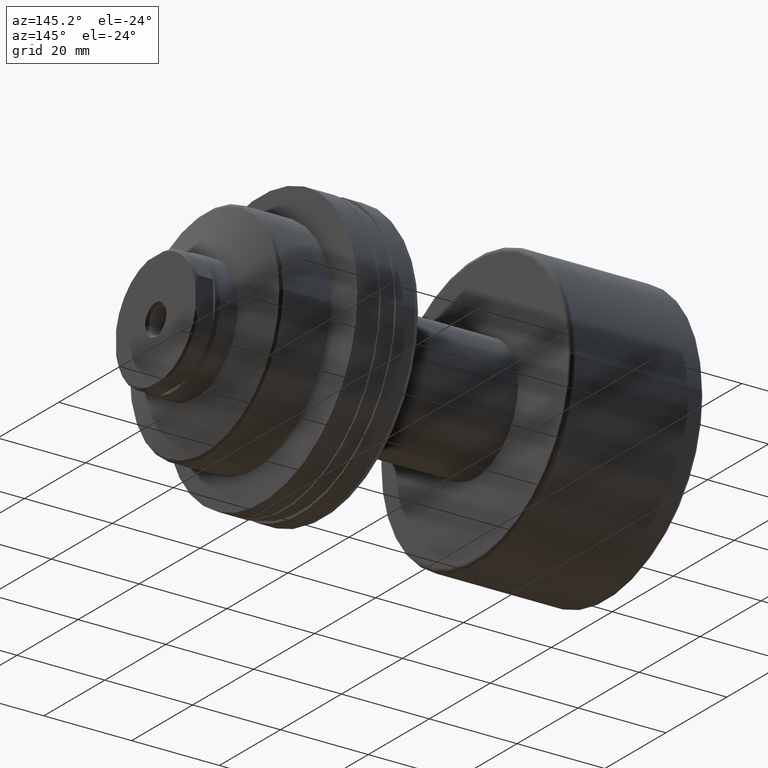
[diagram: clean part render]
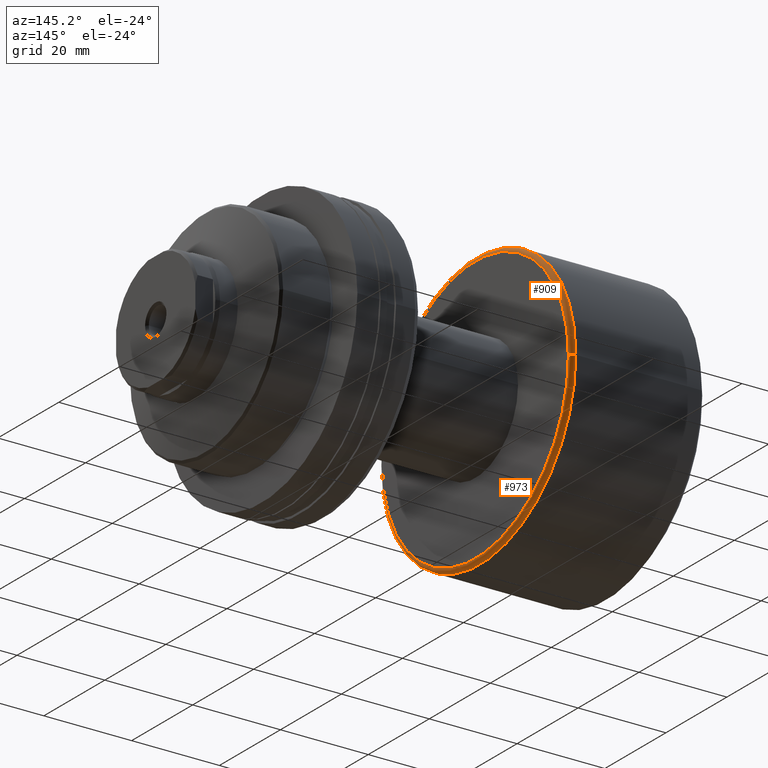
[diagram: same view with one multi-face feature highlighted, each face labeled with its STEP entity id]
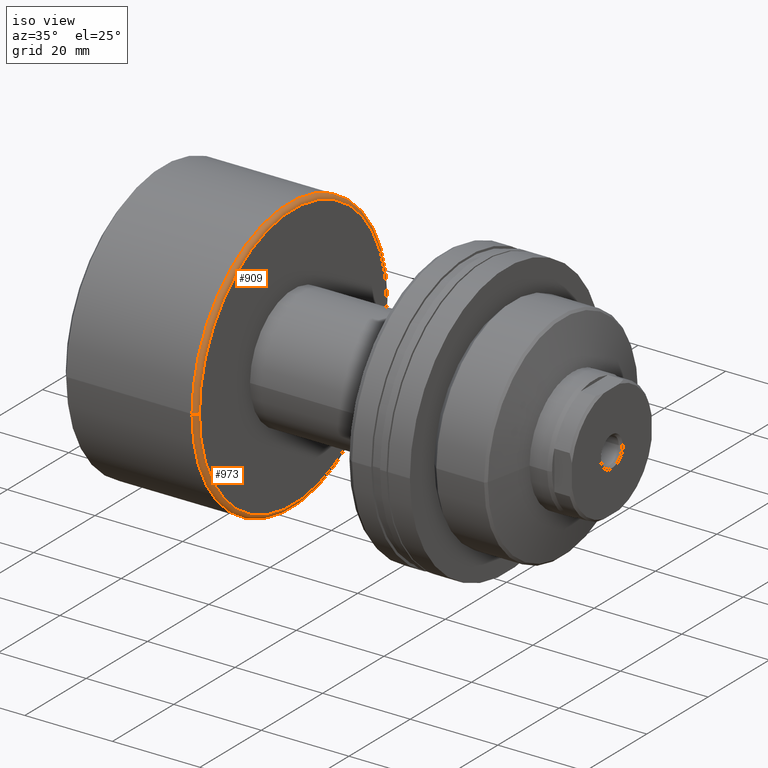
[diagram: same view with one multi-face feature highlighted, each face labeled with its STEP entity id]
A machine part, auxiliary view. The highlighted faces form ONE feature: a constant-radius fillet chain: 2 tangent blend faces with common blend radius 1 mm. The faces share edges in the B-rep.
A second angle (iso view) of the same feature is appended — it is thin or edge-on in the first view.
Their STEP definitions:
[1] entity #973 (Torus):
#95 = EDGE_CURVE ( 'NONE', #328, #554, #1165, .T. ) ;
#157 = AXIS2_PLACEMENT_3D ( 'NONE', #1970, #1654, #366 ) ;
#213 = AXIS2_PLACEMENT_3D ( 'NONE', #2088, #2222, #1882 ) ;
#271 = VERTEX_POINT ( 'NONE', #275 ) ;
#275 = CARTESIAN_POINT ( 'NONE',  ( 31.19999999999999929, 30.50000000000000000, 3.796405077356795115E-15 ) ) ;
#293 = CIRCLE ( 'NONE', #1897, 1.000000000000000888 ) ;
#328 = VERTEX_POINT ( 'NONE', #661 ) ;
#341 = CARTESIAN_POINT ( 'NONE',  ( 31.19999999999999929, -30.50000000000000000, 0.000000000000000000 ) ) ;
#366 = DIRECTION ( 'NONE',  ( 0.000000000000000000, -1.000000000000000000, 0.000000000000000000 ) ) ;
#403 = EDGE_CURVE ( 'NONE', #1991, #554, #1627, .T. ) ;
#500 = DIRECTION ( 'NONE',  ( 1.309811581274509052E-33, -1.224646799147353207E-16, 1.000000000000000000 ) ) ;
#554 = VERTEX_POINT ( 'NONE', #835 ) ;
#613 = EDGE_LOOP ( 'NONE', ( #1440, #2284, #1869, #1691 ) ) ;
#618 = AXIS2_PLACEMENT_3D ( 'NONE', #1915, #2281, #676 ) ;
#657 = DIRECTION ( 'NONE',  ( -1.000000000000000000, -1.069542322069065801E-17, -0.000000000000000000 ) ) ;
#661 = CARTESIAN_POINT ( 'NONE',  ( 30.19999999999999929, 31.50000000000000000, 3.857637417314162689E-15 ) ) ;
#676 = DIRECTION ( 'NONE',  ( -1.000000000000000000, 0.000000000000000000, 0.000000000000000000 ) ) ;
#835 = CARTESIAN_POINT ( 'NONE',  ( 30.19999999999999929, -31.50000000000000000, 0.000000000000000000 ) ) ;
#973 = ADVANCED_FACE ( 'NONE', ( #1516 ), #1225, .T. ) ;
#1165 = CIRCLE ( 'NONE', #157, 31.50000000000000000 ) ;
#1225 = TOROIDAL_SURFACE ( 'NONE', #1338, 30.50000000000000000, 1.000000000000000888 ) ;
#1282 = DIRECTION ( 'NONE',  ( 0.000000000000000000, -1.000000000000000000, -1.224646799147357151E-16 ) ) ;
#1338 = AXIS2_PLACEMENT_3D ( 'NONE', #2071, #657, #1736 ) ;
#1371 = EDGE_CURVE ( 'NONE', #271, #1991, #1935, .T. ) ;
#1440 = ORIENTED_EDGE ( 'NONE', *, *, #1584, .F. ) ;
#1516 = FACE_OUTER_BOUND ( 'NONE', #613, .T. ) ;
#1584 = EDGE_CURVE ( 'NONE', #271, #328, #293, .T. ) ;
#1627 = CIRCLE ( 'NONE', #618, 1.000000000000000888 ) ;
#1654 = DIRECTION ( 'NONE',  ( -1.000000000000000000, -1.069542322069065801E-17, -0.000000000000000000 ) ) ;
#1691 = ORIENTED_EDGE ( 'NONE', *, *, #95, .F. ) ;
#1736 = DIRECTION ( 'NONE',  ( 1.069542322069065801E-17, -1.000000000000000000, 0.000000000000000000 ) ) ;
#1869 = ORIENTED_EDGE ( 'NONE', *, *, #403, .T. ) ;
#1882 = DIRECTION ( 'NONE',  ( 0.000000000000000000, -1.000000000000000000, 0.000000000000000000 ) ) ;
#1897 = AXIS2_PLACEMENT_3D ( 'NONE', #2097, #500, #1282 ) ;
#1915 = CARTESIAN_POINT ( 'NONE',  ( 30.19999999999999929, -30.50000000000000000, 0.000000000000000000 ) ) ;
#1935 = CIRCLE ( 'NONE', #213, 30.50000000000000000 ) ;
#1970 = CARTESIAN_POINT ( 'NONE',  ( 30.19999999999999929, 3.230017812648578475E-16, 0.000000000000000000 ) ) ;
#1991 = VERTEX_POINT ( 'NONE', #341 ) ;
#2071 = CARTESIAN_POINT ( 'NONE',  ( 30.19999999999999929, 0.000000000000000000, 0.000000000000000000 ) ) ;
#2088 = CARTESIAN_POINT ( 'NONE',  ( 31.19999999999999929, 3.336972044855484916E-16, 0.000000000000000000 ) ) ;
#2097 = CARTESIAN_POINT ( 'NONE',  ( 30.19999999999999929, 30.50000000000000000, 3.735172737399427541E-15 ) ) ;
#2222 = DIRECTION ( 'NONE',  ( -1.000000000000000000, -1.069542322069065801E-17, -0.000000000000000000 ) ) ;
#2281 = DIRECTION ( 'NONE',  ( 0.000000000000000000, 0.000000000000000000, -1.000000000000000000 ) ) ;
#2284 = ORIENTED_EDGE ( 'NONE', *, *, #1371, .T. ) ;
[2] entity #909 (Torus):
#101 = AXIS2_PLACEMENT_3D ( 'NONE', #1352, #466, #1186 ) ;
#271 = VERTEX_POINT ( 'NONE', #275 ) ;
#275 = CARTESIAN_POINT ( 'NONE',  ( 31.19999999999999929, 30.50000000000000000, 3.796405077356795115E-15 ) ) ;
#293 = CIRCLE ( 'NONE', #1897, 1.000000000000000888 ) ;
#328 = VERTEX_POINT ( 'NONE', #661 ) ;
#341 = CARTESIAN_POINT ( 'NONE',  ( 31.19999999999999929, -30.50000000000000000, 0.000000000000000000 ) ) ;
#403 = EDGE_CURVE ( 'NONE', #1991, #554, #1627, .T. ) ;
#466 = DIRECTION ( 'NONE',  ( -1.000000000000000000, -1.069542322069065801E-17, -0.000000000000000000 ) ) ;
#500 = DIRECTION ( 'NONE',  ( 1.309811581274509052E-33, -1.224646799147353207E-16, 1.000000000000000000 ) ) ;
#501 = CARTESIAN_POINT ( 'NONE',  ( 31.19999999999999929, 3.336972044855484916E-16, 0.000000000000000000 ) ) ;
#531 = EDGE_CURVE ( 'NONE', #554, #328, #1253, .T. ) ;
#554 = VERTEX_POINT ( 'NONE', #835 ) ;
#618 = AXIS2_PLACEMENT_3D ( 'NONE', #1915, #2281, #676 ) ;
#661 = CARTESIAN_POINT ( 'NONE',  ( 30.19999999999999929, 31.50000000000000000, 3.857637417314162689E-15 ) ) ;
#676 = DIRECTION ( 'NONE',  ( -1.000000000000000000, 0.000000000000000000, 0.000000000000000000 ) ) ;
#715 = DIRECTION ( 'NONE',  ( 0.000000000000000000, -1.000000000000000000, 0.000000000000000000 ) ) ;
#783 = ORIENTED_EDGE ( 'NONE', *, *, #1584, .T. ) ;
#835 = CARTESIAN_POINT ( 'NONE',  ( 30.19999999999999929, -31.50000000000000000, 0.000000000000000000 ) ) ;
#909 = ADVANCED_FACE ( 'NONE', ( #1147 ), #2081, .T. ) ;
#923 = ORIENTED_EDGE ( 'NONE', *, *, #531, .F. ) ;
#972 = ORIENTED_EDGE ( 'NONE', *, *, #1083, .T. ) ;
#1000 = CIRCLE ( 'NONE', #2275, 30.50000000000000000 ) ;
#1083 = EDGE_CURVE ( 'NONE', #1991, #271, #1000, .T. ) ;
#1147 = FACE_OUTER_BOUND ( 'NONE', #2200, .T. ) ;
#1186 = DIRECTION ( 'NONE',  ( 1.069542322069065801E-17, -1.000000000000000000, 0.000000000000000000 ) ) ;
#1206 = DIRECTION ( 'NONE',  ( -1.000000000000000000, -1.069542322069065801E-17, -0.000000000000000000 ) ) ;
#1253 = CIRCLE ( 'NONE', #1889, 31.50000000000000000 ) ;
#1282 = DIRECTION ( 'NONE',  ( 0.000000000000000000, -1.000000000000000000, -1.224646799147357151E-16 ) ) ;
#1352 = CARTESIAN_POINT ( 'NONE',  ( 30.19999999999999929, 0.000000000000000000, 0.000000000000000000 ) ) ;
#1557 = CARTESIAN_POINT ( 'NONE',  ( 30.19999999999999929, 3.230017812648578475E-16, 0.000000000000000000 ) ) ;
#1584 = EDGE_CURVE ( 'NONE', #271, #328, #293, .T. ) ;
#1627 = CIRCLE ( 'NONE', #618, 1.000000000000000888 ) ;
#1719 = DIRECTION ( 'NONE',  ( 0.000000000000000000, -1.000000000000000000, 0.000000000000000000 ) ) ;
#1866 = ORIENTED_EDGE ( 'NONE', *, *, #403, .F. ) ;
#1889 = AXIS2_PLACEMENT_3D ( 'NONE', #1557, #1206, #1719 ) ;
#1897 = AXIS2_PLACEMENT_3D ( 'NONE', #2097, #500, #1282 ) ;
#1915 = CARTESIAN_POINT ( 'NONE',  ( 30.19999999999999929, -30.50000000000000000, 0.000000000000000000 ) ) ;
#1991 = VERTEX_POINT ( 'NONE', #341 ) ;
#2081 = TOROIDAL_SURFACE ( 'NONE', #101, 30.50000000000000000, 1.000000000000000888 ) ;
#2097 = CARTESIAN_POINT ( 'NONE',  ( 30.19999999999999929, 30.50000000000000000, 3.735172737399427541E-15 ) ) ;
#2200 = EDGE_LOOP ( 'NONE', ( #972, #783, #923, #1866 ) ) ;
#2275 = AXIS2_PLACEMENT_3D ( 'NONE', #501, #2288, #715 ) ;
#2281 = DIRECTION ( 'NONE',  ( 0.000000000000000000, 0.000000000000000000, -1.000000000000000000 ) ) ;
#2288 = DIRECTION ( 'NONE',  ( -1.000000000000000000, -1.069542322069065801E-17, -0.000000000000000000 ) ) ;